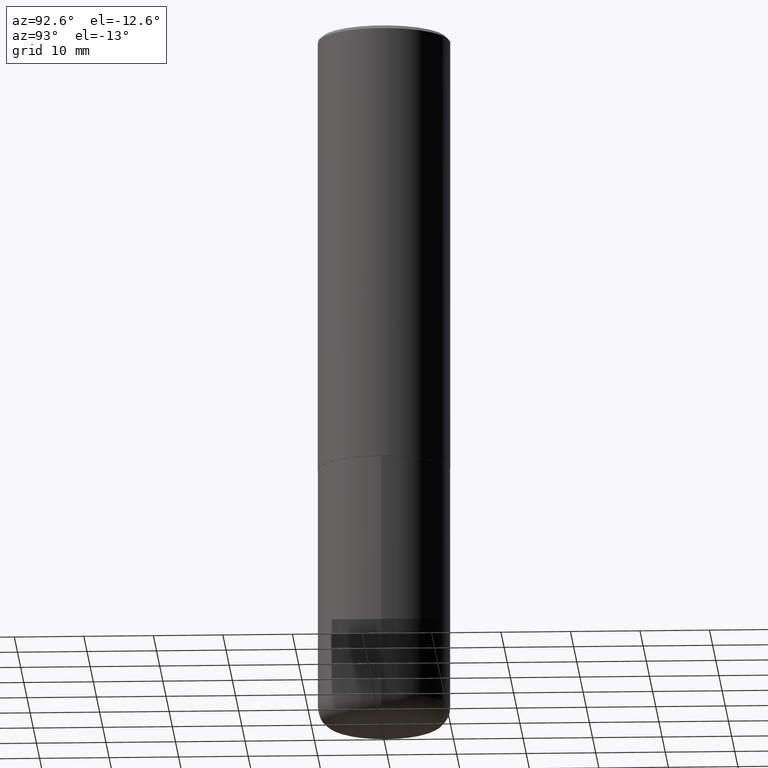
[diagram: clean part render]
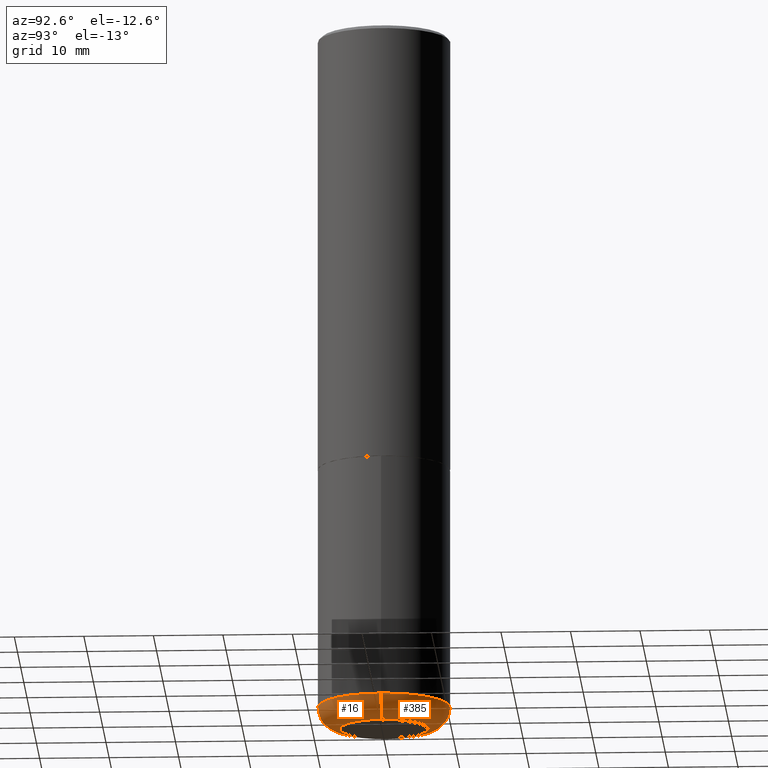
[diagram: same view with one multi-face feature highlighted, each face labeled with its STEP entity id]
A machine part, auxiliary view. The highlighted faces form ONE feature: a constant-radius fillet chain: 2 tangent blend faces with common blend radius 3.175 mm. The faces share edges in the B-rep.
Their STEP definitions:
[1] entity #385 (Torus):
#7 = VERTEX_POINT ( 'NONE', #39 ) ;
#10 = CARTESIAN_POINT ( 'NONE',  ( -0.2500000000000000555, -1.152726172244457105E-14, -4.000000000000000000 ) ) ;
#19 = DIRECTION ( 'NONE',  ( 1.000000000000000000, -6.982962677686263555E-15, 0.000000000000000000 ) ) ;
#20 = DIRECTION ( 'NONE',  ( -2.445468806185136597E-29, 3.491481338843145583E-15, 1.000000000000000000 ) ) ;
#29 = DIRECTION ( 'NONE',  ( -2.445468806185136597E-29, 3.491481338843145583E-15, 1.000000000000000000 ) ) ;
#33 = EDGE_CURVE ( 'NONE', #142, #244, #126, .T. ) ;
#39 = CARTESIAN_POINT ( 'NONE',  ( -0.3749999999999999445, -1.086495492891681496E-14, -3.875000000000000000 ) ) ;
#41 = DIRECTION ( 'NONE',  ( -6.982962677686266711E-15, -1.000000000000000000, 3.491481338843145583E-15 ) ) ;
#49 = DIRECTION ( 'NONE',  ( 1.000000000000000000, -6.982962677686266711E-15, 0.000000000000000000 ) ) ;
#52 = AXIS2_PLACEMENT_3D ( 'NONE', #353, #29, #316 ) ;
#71 = VERTEX_POINT ( 'NONE', #10 ) ;
#79 = CARTESIAN_POINT ( 'NONE',  ( 0.2500000000000000555, -1.527523085743875734E-14, -3.875000000000000000 ) ) ;
#126 = CIRCLE ( 'NONE', #318, 0.1249999999999999306 ) ;
#130 = DIRECTION ( 'NONE',  ( 1.000000000000000000, -6.982962677686263555E-15, 4.883557194083111219E-29 ) ) ;
#139 = ORIENTED_EDGE ( 'NONE', *, *, #314, .T. ) ;
#142 = VERTEX_POINT ( 'NONE', #181 ) ;
#148 = EDGE_CURVE ( 'NONE', #244, #7, #165, .T. ) ;
#155 = CARTESIAN_POINT ( 'NONE',  ( -0.2500000000000000555, -1.175313334861693862E-14, -3.875000000000000000 ) ) ;
#161 = DIRECTION ( 'NONE',  ( -2.445468806185136597E-29, 3.491481338843145583E-15, 1.000000000000000000 ) ) ;
#165 = CIRCLE ( 'NONE', #235, 0.3749999999999999445 ) ;
#181 = CARTESIAN_POINT ( 'NONE',  ( 0.2500000000000000555, -1.571166602479415059E-14, -4.000000000000000000 ) ) ;
#199 = ORIENTED_EDGE ( 'NONE', *, *, #33, .F. ) ;
#206 = TOROIDAL_SURFACE ( 'NONE', #339, 0.2500000000000000555, 0.1249999999999999167 ) ;
#210 = EDGE_CURVE ( 'NONE', #71, #7, #320, .T. ) ;
#214 = DIRECTION ( 'NONE',  ( -1.000000000000000000, 7.105427357601000281E-15, 0.000000000000000000 ) ) ;
#226 = ORIENTED_EDGE ( 'NONE', *, *, #210, .T. ) ;
#235 = AXIS2_PLACEMENT_3D ( 'NONE', #308, #20, #19 ) ;
#244 = VERTEX_POINT ( 'NONE', #315 ) ;
#258 = ORIENTED_EDGE ( 'NONE', *, *, #148, .F. ) ;
#263 = CARTESIAN_POINT ( 'NONE',  ( 9.476191623967404313E-29, -1.352949018801718908E-14, -3.875000000000000000 ) ) ;
#264 = EDGE_LOOP ( 'NONE', ( #139, #226, #258, #199 ) ) ;
#308 = CARTESIAN_POINT ( 'NONE',  ( 9.476191623967404313E-29, -1.352949018801718908E-14, -3.875000000000000000 ) ) ;
#314 = EDGE_CURVE ( 'NONE', #142, #71, #351, .T. ) ;
#315 = CARTESIAN_POINT ( 'NONE',  ( 0.3749999999999999445, -1.614810119214953752E-14, -3.875000000000000000 ) ) ;
#316 = DIRECTION ( 'NONE',  ( 1.000000000000000000, -6.982962677686269077E-15, 0.000000000000000000 ) ) ;
#318 = AXIS2_PLACEMENT_3D ( 'NONE', #79, #41, #49 ) ;
#320 = CIRCLE ( 'NONE', #383, 0.1249999999999999306 ) ;
#328 = FACE_OUTER_BOUND ( 'NONE', #264, .T. ) ;
#339 = AXIS2_PLACEMENT_3D ( 'NONE', #263, #161, #130 ) ;
#344 = DIRECTION ( 'NONE',  ( 7.105427357601001859E-15, 1.000000000000000000, -3.491481338843145583E-15 ) ) ;
#351 = CIRCLE ( 'NONE', #52, 0.2500000000000000555 ) ;
#353 = CARTESIAN_POINT ( 'NONE',  ( 9.781875224740546387E-29, -1.396592535537258233E-14, -4.000000000000000000 ) ) ;
#383 = AXIS2_PLACEMENT_3D ( 'NONE', #155, #344, #214 ) ;
#385 = ADVANCED_FACE ( 'NONE', ( #328 ), #206, .T. ) ;
[2] entity #16 (Torus):
#7 = VERTEX_POINT ( 'NONE', #39 ) ;
#10 = CARTESIAN_POINT ( 'NONE',  ( -0.2500000000000000555, -1.152726172244457105E-14, -4.000000000000000000 ) ) ;
#16 = ADVANCED_FACE ( 'NONE', ( #305 ), #106, .T. ) ;
#27 = ORIENTED_EDGE ( 'NONE', *, *, #408, .F. ) ;
#28 = AXIS2_PLACEMENT_3D ( 'NONE', #31, #326, #163 ) ;
#30 = ORIENTED_EDGE ( 'NONE', *, *, #33, .T. ) ;
#31 = CARTESIAN_POINT ( 'NONE',  ( 9.476191623967404313E-29, -1.352949018801718908E-14, -3.875000000000000000 ) ) ;
#33 = EDGE_CURVE ( 'NONE', #142, #244, #126, .T. ) ;
#39 = CARTESIAN_POINT ( 'NONE',  ( -0.3749999999999999445, -1.086495492891681496E-14, -3.875000000000000000 ) ) ;
#41 = DIRECTION ( 'NONE',  ( -6.982962677686266711E-15, -1.000000000000000000, 3.491481338843145583E-15 ) ) ;
#49 = DIRECTION ( 'NONE',  ( 1.000000000000000000, -6.982962677686266711E-15, 0.000000000000000000 ) ) ;
#67 = ORIENTED_EDGE ( 'NONE', *, *, #210, .F. ) ;
#71 = VERTEX_POINT ( 'NONE', #10 ) ;
#79 = CARTESIAN_POINT ( 'NONE',  ( 0.2500000000000000555, -1.527523085743875734E-14, -3.875000000000000000 ) ) ;
#106 = TOROIDAL_SURFACE ( 'NONE', #299, 0.2500000000000000555, 0.1249999999999999167 ) ;
#116 = DIRECTION ( 'NONE',  ( 1.000000000000000000, -6.982962677686263555E-15, 4.883557194083111219E-29 ) ) ;
#126 = CIRCLE ( 'NONE', #318, 0.1249999999999999306 ) ;
#142 = VERTEX_POINT ( 'NONE', #181 ) ;
#155 = CARTESIAN_POINT ( 'NONE',  ( -0.2500000000000000555, -1.175313334861693862E-14, -3.875000000000000000 ) ) ;
#163 = DIRECTION ( 'NONE',  ( 1.000000000000000000, -6.982962677686263555E-15, 0.000000000000000000 ) ) ;
#167 = EDGE_LOOP ( 'NONE', ( #67, #174, #30, #27 ) ) ;
#174 = ORIENTED_EDGE ( 'NONE', *, *, #332, .T. ) ;
#180 = CIRCLE ( 'NONE', #213, 0.2500000000000000555 ) ;
#181 = CARTESIAN_POINT ( 'NONE',  ( 0.2500000000000000555, -1.571166602479415059E-14, -4.000000000000000000 ) ) ;
#201 = CARTESIAN_POINT ( 'NONE',  ( 9.476191623967404313E-29, -1.352949018801718908E-14, -3.875000000000000000 ) ) ;
#210 = EDGE_CURVE ( 'NONE', #71, #7, #320, .T. ) ;
#213 = AXIS2_PLACEMENT_3D ( 'NONE', #231, #390, #358 ) ;
#214 = DIRECTION ( 'NONE',  ( -1.000000000000000000, 7.105427357601000281E-15, 0.000000000000000000 ) ) ;
#231 = CARTESIAN_POINT ( 'NONE',  ( 9.781875224740546387E-29, -1.396592535537258233E-14, -4.000000000000000000 ) ) ;
#244 = VERTEX_POINT ( 'NONE', #315 ) ;
#299 = AXIS2_PLACEMENT_3D ( 'NONE', #201, #304, #116 ) ;
#304 = DIRECTION ( 'NONE',  ( -2.445468806185136597E-29, 3.491481338843145583E-15, 1.000000000000000000 ) ) ;
#305 = FACE_OUTER_BOUND ( 'NONE', #167, .T. ) ;
#315 = CARTESIAN_POINT ( 'NONE',  ( 0.3749999999999999445, -1.614810119214953752E-14, -3.875000000000000000 ) ) ;
#318 = AXIS2_PLACEMENT_3D ( 'NONE', #79, #41, #49 ) ;
#320 = CIRCLE ( 'NONE', #383, 0.1249999999999999306 ) ;
#326 = DIRECTION ( 'NONE',  ( -2.445468806185136597E-29, 3.491481338843145583E-15, 1.000000000000000000 ) ) ;
#332 = EDGE_CURVE ( 'NONE', #71, #142, #180, .T. ) ;
#344 = DIRECTION ( 'NONE',  ( 7.105427357601001859E-15, 1.000000000000000000, -3.491481338843145583E-15 ) ) ;
#358 = DIRECTION ( 'NONE',  ( 1.000000000000000000, -6.982962677686269077E-15, 0.000000000000000000 ) ) ;
#383 = AXIS2_PLACEMENT_3D ( 'NONE', #155, #344, #214 ) ;
#390 = DIRECTION ( 'NONE',  ( -2.445468806185136597E-29, 3.491481338843145583E-15, 1.000000000000000000 ) ) ;
#408 = EDGE_CURVE ( 'NONE', #7, #244, #414, .T. ) ;
#414 = CIRCLE ( 'NONE', #28, 0.3749999999999999445 ) ;